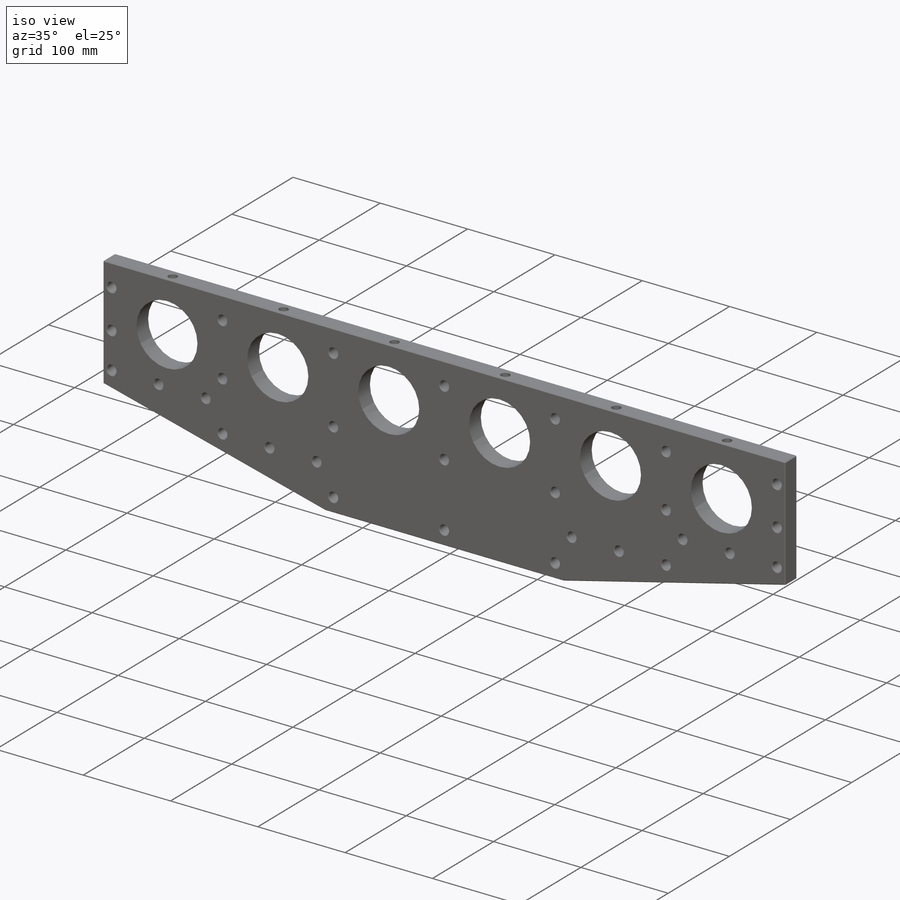
[diagram: iso view]
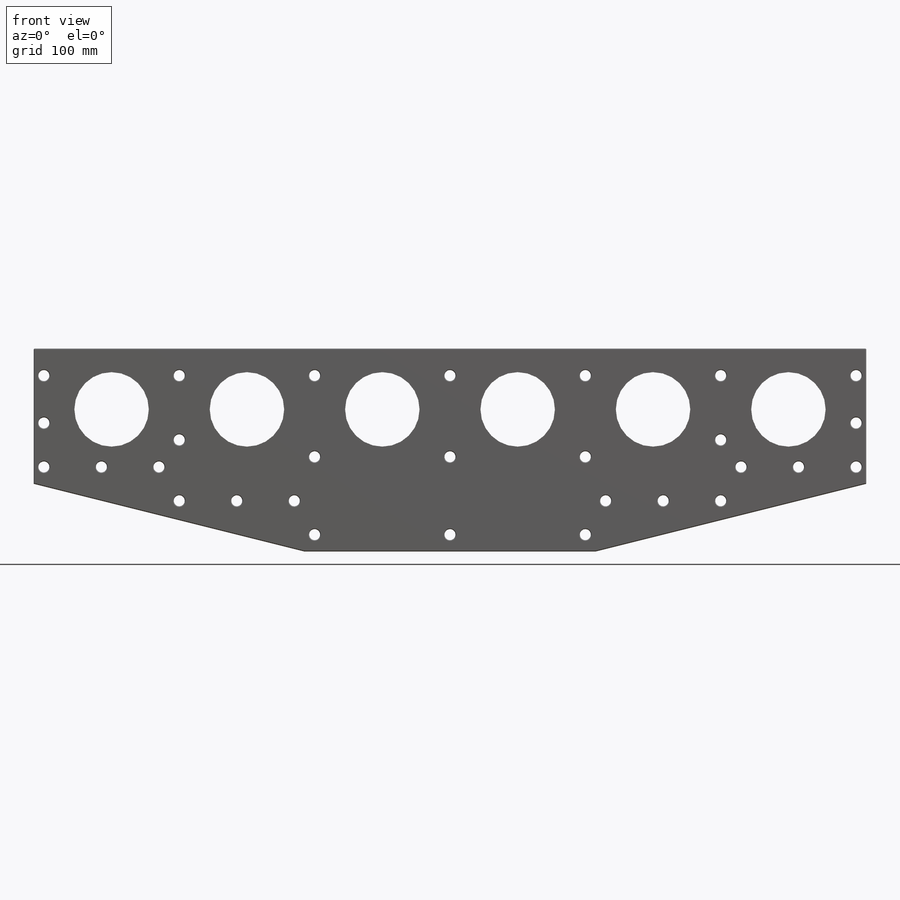
[diagram: front view]
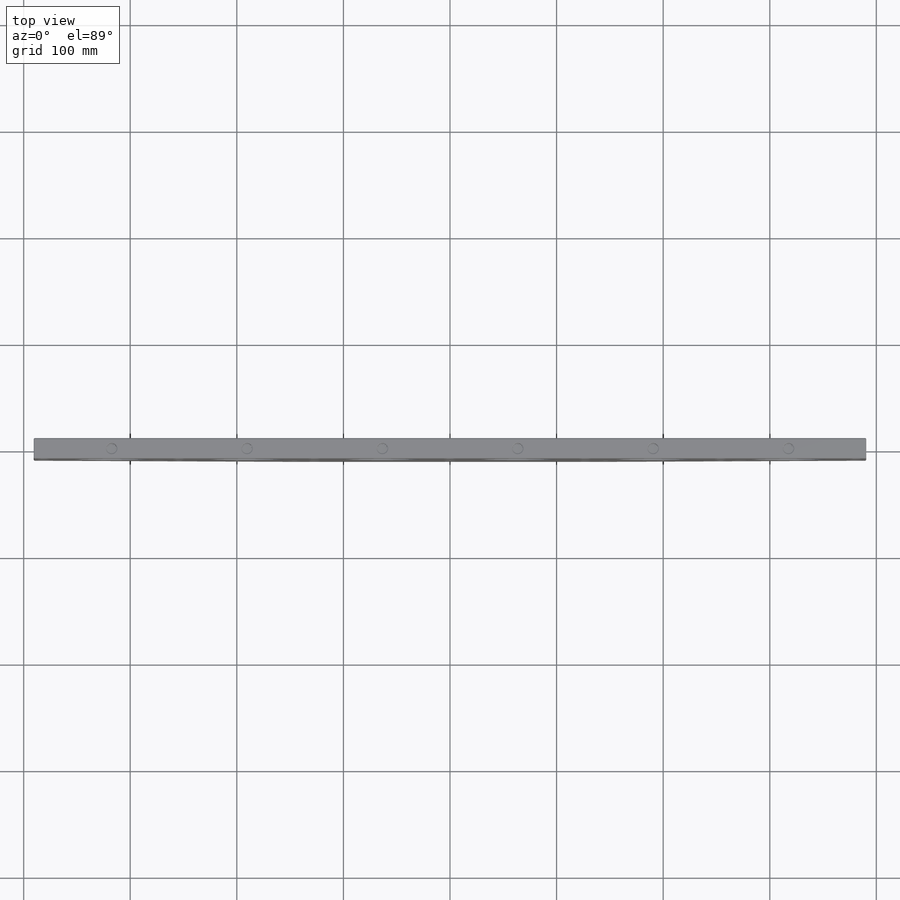
[diagram: top view]
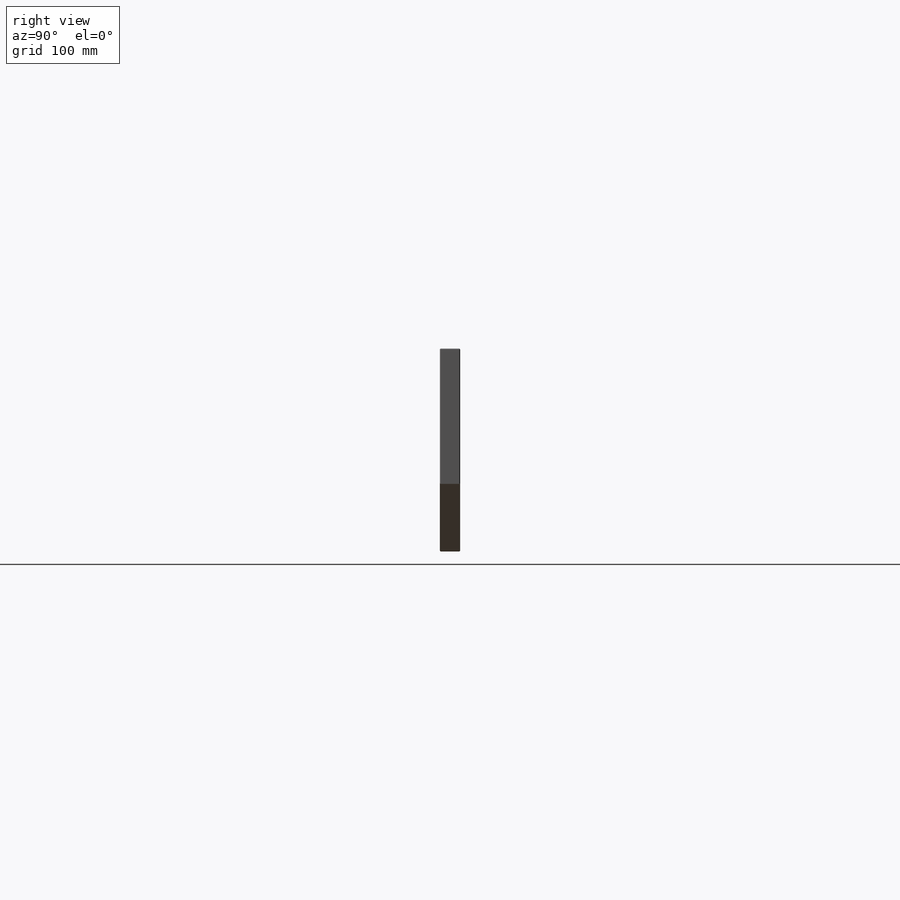
[diagram: right view]
SOLIDWORKS PART (.sldprt)
format: sldprt  version: not decoded by parser v0  size: 515,072 bytes
history: native  units: mm
features: sketch x8, plane x3, hole x3, material x1, extrude x1, cut_extrude x1, pattern_linear x1, chamfer x1 + 2 further entries (+11 scaffold rows collapsed)
feature tree (32):
  scaffold x11  (default folders/planes/origin — collapsed)
  material  "6061-T6 Al"
  plane  "FRONT"
  plane  "TOP"
  plane  "RIGHT"
  "Top Axis"
  "Right Axis"
  sketch  "Sketch1"  dims[c1.D1=190.5mm c1.D2=831.85mm c2.D1=781.05mm c2.D2=190.5mm]
  extrude  "Base-Extrude"  Depth=19.05mm
  sketch  "Sketch2"  dims[D1=63.5mm D2=254.0mm]
  cut_extrude  "Cut-Extrude1"  [1 undecoded]
  hole  "3/8 Clearance Hole1"  Diameter=10.31748mm Depth=19.05mm
  sketch  "Sketch4"  dims[c1.D1=53.975mm c1.D2=127.0mm c1.D3=25.4mm c1.D4=76.2mm c1.D5=73.025mm c2.D1=60.325mm c2.D6=57.15mm c2.D7=44.45mm c2.D8=41.275mm c2.D9=53.975mm c2.D10=53.975mm c2.D11=53.975mm]
  sketch  "Sketch3"  dims[hole-wizard template sketch: 46 standard entries collapsed; hole parameters kept: c15.Thru Hole Dia.=~10.31748mm c15.Thru Hole Depth=19.05mm c15.Near C'Sink Dia.=11.684mm c15.D4=~3.666174mm c15.Near C'Sink Angle=82.0deg c15.Far C'Sink Dia.=11.684mm c15.D6=~9.919017mm c15.Far C'Sink Angle=82.0deg]
  hole  "3/8-16 Tapped Hole1"  Diameter=7.9375mm Depth=23.8252mm
  sketch  "Sketch8"
  sketch  "Sketch7"  dims[hole-wizard template sketch: 27 standard entries collapsed; hole parameters kept: c8.Tap Drill Depth=23.8252mm c8.Thread Major Dia.=9.525mm c8.Thread Depth=19.05mm c8.Near C'Sink Dia.=11.176mm c8.D6=~4.399409mm c8.Near C'Sink Angle=120.0deg c8.D7=~14.816244mm c8.Drill Angle=118.0deg]
  pattern_linear  "LPattern1"  Count1=4 Count2=3 Spacing1=127mm Spacing2=127mm
  hole  "Large Vent Hole"  Diameter=69.85mm Depth=19.05mm
  sketch  "Sketch6"  dims[D1=57.15mm D2=127.0mm D3=127.0mm D4=127.0mm]
  sketch  "Sketch5"  dims[hole-wizard template sketch: 59 standard entries collapsed; hole parameters kept: c18.Thru Hole Dia.=69.85mm c18.Thru Hole Depth=19.05mm]
  chamfer  "Chamfer1"  Distance=0.762mm Angle=45deg
decode coverage: 13 of 15 modeling features carry decoded parameters; 2 rows unclassified (native names shown)
note: ~ marks probable driven/reference dimensions
note: 1 parameter value undecoded
note: suppression state not decoded; provenance and decode notes live in map.json
